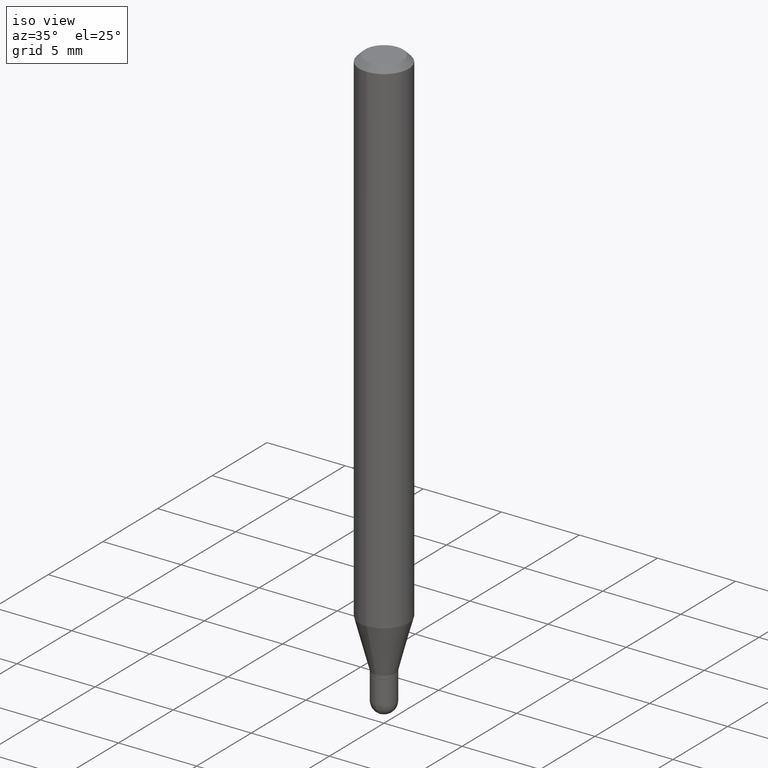
[diagram: clean part render]
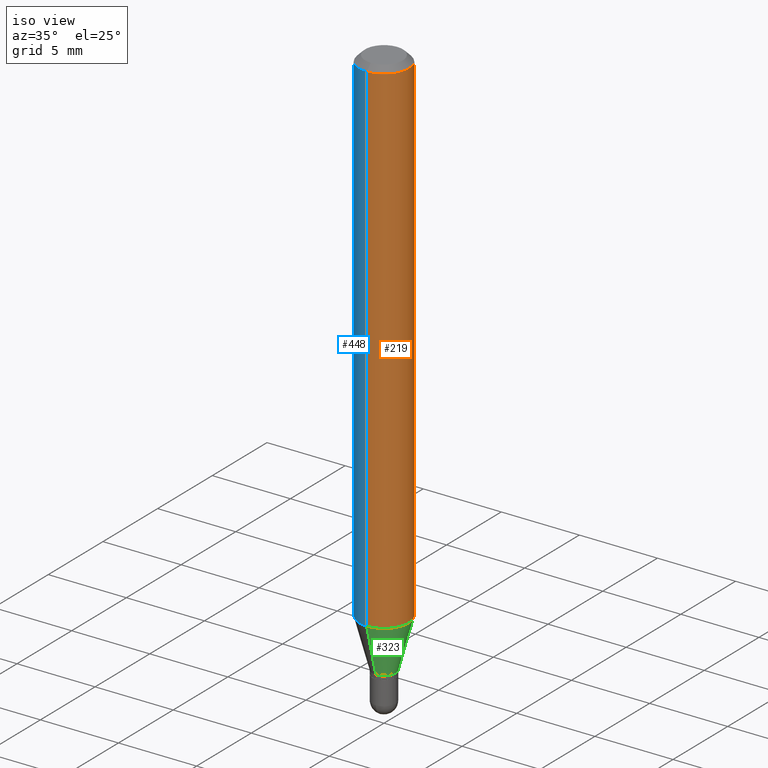
[diagram: same view with three faces highlighted in distinct colors, each labeled with its STEP entity id]
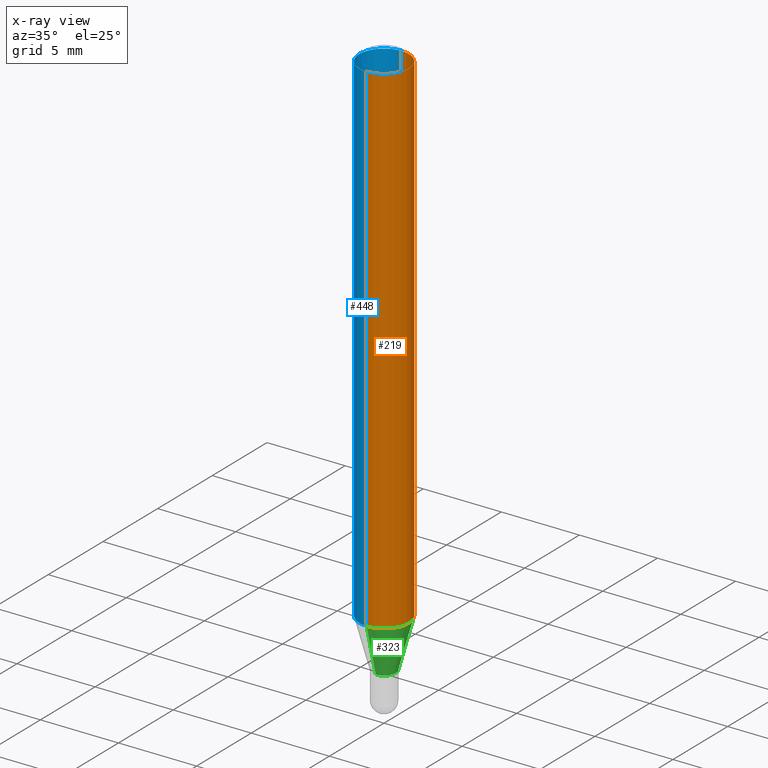
[diagram: x-ray of the same camera — body ghosted, the three highlighted faces saturated]
A machine part, iso view with three faces highlighted in distinct colors.
The next image is the same camera in x-ray (body ghosted, the three faces saturated) — at least one of them is partly hidden behind the body in this view.
Their STEP definitions:

[orange] entity #219 — the highlighted cylindrical surface (edge-blend (fillet) strip) has radius 1.5875 mm, axis along (-0, 0, 1).
#13 = CARTESIAN_POINT ( 'NONE',  ( -4.364351673553605587E-16, -0.06250000000000449640, -1.277842323350228515 ) ) ;
#19 = CARTESIAN_POINT ( 'NONE',  ( 4.440892098500935790E-16, 0.06249999999999551054, -1.277842323350228959 ) ) ;
#57 = ORIENTED_EDGE ( 'NONE', *, *, #73, .T. ) ;
#59 = CIRCLE ( 'NONE', #384, 0.06250000000000000000 ) ;
#73 = EDGE_CURVE ( 'NONE', #133, #124, #59, .T. ) ;
#78 = CARTESIAN_POINT ( 'NONE',  ( -4.364351673553912750E-16, -0.06250000000000005551, -0.01499999999999979128 ) ) ;
#85 = DIRECTION ( 'NONE',  ( -2.445467841293650250E-29, 3.491482720622672358E-15, 1.000000000000000000 ) ) ;
#94 = DIRECTION ( 'NONE',  ( -2.445467841293650250E-29, 3.491482720622672358E-15, 1.000000000000000000 ) ) ;
#101 = CARTESIAN_POINT ( 'NONE',  ( 4.440892098500625669E-16, 0.06250000000000000000, -2.182176700389170224E-16 ) ) ;
#112 = VECTOR ( 'NONE', #420, 39.37007874015748143 ) ;
#124 = VERTEX_POINT ( 'NONE', #19 ) ;
#133 = VERTEX_POINT ( 'NONE', #13 ) ;
#137 = DIRECTION ( 'NONE',  ( -2.445467841293650250E-29, 3.491482720622672358E-15, 1.000000000000000000 ) ) ;
#142 = CARTESIAN_POINT ( 'NONE',  ( 0.000000000000000000, 0.000000000000000000, 0.000000000000000000 ) ) ;
#160 = EDGE_CURVE ( 'NONE', #346, #214, #365, .T. ) ;
#163 = CARTESIAN_POINT ( 'NONE',  ( 3.124922307996946489E-29, -4.461564391657653796E-15, -1.277842323350228737 ) ) ;
#170 = VECTOR ( 'NONE', #501, 39.37007874015748143 ) ;
#183 = CARTESIAN_POINT ( 'NONE',  ( -4.364351673553916201E-16, -0.06250000000000000000, 2.182176700389170224E-16 ) ) ;
#185 = EDGE_CURVE ( 'NONE', #124, #214, #455, .T. ) ;
#211 = ORIENTED_EDGE ( 'NONE', *, *, #160, .F. ) ;
#214 = VERTEX_POINT ( 'NONE', #379 ) ;
#219 = ADVANCED_FACE ( 'NONE', ( #347 ), #341, .T. ) ;
#224 = CARTESIAN_POINT ( 'NONE',  ( 3.668201761940477862E-31, -5.237224080934011471E-17, -0.01500000000000000812 ) ) ;
#256 = DIRECTION ( 'NONE',  ( -6.982962677686265922E-15, -1.000000000000000000, 3.491482720622672358E-15 ) ) ;
#259 = EDGE_LOOP ( 'NONE', ( #57, #421, #211, #338 ) ) ;
#264 = LINE ( 'NONE', #183, #112 ) ;
#276 = EDGE_CURVE ( 'NONE', #133, #346, #264, .T. ) ;
#338 = ORIENTED_EDGE ( 'NONE', *, *, #276, .F. ) ;
#341 = CYLINDRICAL_SURFACE ( 'NONE', #394, 0.06250000000000000000 ) ;
#346 = VERTEX_POINT ( 'NONE', #78 ) ;
#347 = FACE_OUTER_BOUND ( 'NONE', #259, .T. ) ;
#365 = CIRCLE ( 'NONE', #500, 0.06250000000000000000 ) ;
#379 = CARTESIAN_POINT ( 'NONE',  ( 4.440892098500940720E-16, 0.06249999999999995143, -0.01500000000000022669 ) ) ;
#384 = AXIS2_PLACEMENT_3D ( 'NONE', #163, #85, #413 ) ;
#394 = AXIS2_PLACEMENT_3D ( 'NONE', #142, #94, #256 ) ;
#413 = DIRECTION ( 'NONE',  ( -6.982962677686265922E-15, -1.000000000000000000, 4.370956789862821150E-15 ) ) ;
#420 = DIRECTION ( 'NONE',  ( -2.445467841293649970E-29, 3.491482720622672358E-15, 1.000000000000000000 ) ) ;
#421 = ORIENTED_EDGE ( 'NONE', *, *, #185, .T. ) ;
#455 = LINE ( 'NONE', #101, #170 ) ;
#497 = DIRECTION ( 'NONE',  ( -6.982962677686265922E-15, -1.000000000000000000, 3.483106191921935554E-15 ) ) ;
#500 = AXIS2_PLACEMENT_3D ( 'NONE', #224, #137, #497 ) ;
#501 = DIRECTION ( 'NONE',  ( -2.445467841293649970E-29, 3.491482720622672358E-15, 1.000000000000000000 ) ) ;

[blue] entity #448 — the highlighted cylindrical surface (edge-blend (fillet) strip) has radius 1.5875 mm, axis along (-0, 0, 1).
#13 = CARTESIAN_POINT ( 'NONE',  ( -4.364351673553605587E-16, -0.06250000000000449640, -1.277842323350228515 ) ) ;
#19 = CARTESIAN_POINT ( 'NONE',  ( 4.440892098500935790E-16, 0.06249999999999551054, -1.277842323350228959 ) ) ;
#33 = CARTESIAN_POINT ( 'NONE',  ( 3.668201761940477862E-31, -5.237224080934011471E-17, -0.01500000000000000812 ) ) ;
#58 = DIRECTION ( 'NONE',  ( -6.982962677686265922E-15, -1.000000000000000000, 3.483106191921935554E-15 ) ) ;
#60 = AXIS2_PLACEMENT_3D ( 'NONE', #197, #192, #360 ) ;
#78 = CARTESIAN_POINT ( 'NONE',  ( -4.364351673553912750E-16, -0.06250000000000005551, -0.01499999999999979128 ) ) ;
#96 = DIRECTION ( 'NONE',  ( -2.445467841293650250E-29, 3.491482720622672358E-15, 1.000000000000000000 ) ) ;
#101 = CARTESIAN_POINT ( 'NONE',  ( 4.440892098500625669E-16, 0.06250000000000000000, -2.182176700389170224E-16 ) ) ;
#112 = VECTOR ( 'NONE', #420, 39.37007874015748143 ) ;
#113 = CARTESIAN_POINT ( 'NONE',  ( 0.000000000000000000, 0.000000000000000000, 0.000000000000000000 ) ) ;
#115 = DIRECTION ( 'NONE',  ( -6.982962677686265922E-15, -1.000000000000000000, 3.491482720622672358E-15 ) ) ;
#124 = VERTEX_POINT ( 'NONE', #19 ) ;
#133 = VERTEX_POINT ( 'NONE', #13 ) ;
#145 = ORIENTED_EDGE ( 'NONE', *, *, #428, .T. ) ;
#161 = CIRCLE ( 'NONE', #260, 0.06250000000000000000 ) ;
#168 = EDGE_LOOP ( 'NONE', ( #184, #145, #464, #340 ) ) ;
#170 = VECTOR ( 'NONE', #501, 39.37007874015748143 ) ;
#183 = CARTESIAN_POINT ( 'NONE',  ( -4.364351673553916201E-16, -0.06250000000000000000, 2.182176700389170224E-16 ) ) ;
#184 = ORIENTED_EDGE ( 'NONE', *, *, #185, .F. ) ;
#185 = EDGE_CURVE ( 'NONE', #124, #214, #455, .T. ) ;
#192 = DIRECTION ( 'NONE',  ( -2.445467841293650250E-29, 3.491482720622672358E-15, 1.000000000000000000 ) ) ;
#197 = CARTESIAN_POINT ( 'NONE',  ( 3.124922307996946489E-29, -4.461564391657653796E-15, -1.277842323350228737 ) ) ;
#214 = VERTEX_POINT ( 'NONE', #379 ) ;
#260 = AXIS2_PLACEMENT_3D ( 'NONE', #33, #96, #58 ) ;
#264 = LINE ( 'NONE', #183, #112 ) ;
#266 = EDGE_CURVE ( 'NONE', #214, #346, #161, .T. ) ;
#276 = EDGE_CURVE ( 'NONE', #133, #346, #264, .T. ) ;
#279 = DIRECTION ( 'NONE',  ( -2.445467841293650250E-29, 3.491482720622672358E-15, 1.000000000000000000 ) ) ;
#340 = ORIENTED_EDGE ( 'NONE', *, *, #266, .F. ) ;
#346 = VERTEX_POINT ( 'NONE', #78 ) ;
#360 = DIRECTION ( 'NONE',  ( -6.982962677686265922E-15, -1.000000000000000000, 4.370956789862821150E-15 ) ) ;
#379 = CARTESIAN_POINT ( 'NONE',  ( 4.440892098500940720E-16, 0.06249999999999995143, -0.01500000000000022669 ) ) ;
#420 = DIRECTION ( 'NONE',  ( -2.445467841293649970E-29, 3.491482720622672358E-15, 1.000000000000000000 ) ) ;
#428 = EDGE_CURVE ( 'NONE', #124, #133, #458, .T. ) ;
#448 = ADVANCED_FACE ( 'NONE', ( #477 ), #474, .T. ) ;
#455 = LINE ( 'NONE', #101, #170 ) ;
#458 = CIRCLE ( 'NONE', #60, 0.06250000000000000000 ) ;
#464 = ORIENTED_EDGE ( 'NONE', *, *, #276, .T. ) ;
#474 = CYLINDRICAL_SURFACE ( 'NONE', #481, 0.06250000000000000000 ) ;
#477 = FACE_OUTER_BOUND ( 'NONE', #168, .T. ) ;
#481 = AXIS2_PLACEMENT_3D ( 'NONE', #113, #279, #115 ) ;
#501 = DIRECTION ( 'NONE',  ( -2.445467841293649970E-29, 3.491482720622672358E-15, 1.000000000000000000 ) ) ;

[green] entity #323 — the highlighted conical surface has half-angle 15 deg.
#13 = CARTESIAN_POINT ( 'NONE',  ( -4.364351673553605587E-16, -0.06250000000000449640, -1.277842323350228515 ) ) ;
#19 = CARTESIAN_POINT ( 'NONE',  ( 4.440892098500935790E-16, 0.06249999999999551054, -1.277842323350228959 ) ) ;
#24 = EDGE_CURVE ( 'NONE', #342, #133, #290, .T. ) ;
#34 = ORIENTED_EDGE ( 'NONE', *, *, #24, .F. ) ;
#36 = ORIENTED_EDGE ( 'NONE', *, *, #73, .F. ) ;
#47 = CARTESIAN_POINT ( 'NONE',  ( -2.059973989917119804E-16, -0.02950000000000509159, -1.401000000000000245 ) ) ;
#54 = ORIENTED_EDGE ( 'NONE', *, *, #460, .T. ) ;
#59 = CIRCLE ( 'NONE', #384, 0.06250000000000000000 ) ;
#63 = LINE ( 'NONE', #303, #386 ) ;
#73 = EDGE_CURVE ( 'NONE', #133, #124, #59, .T. ) ;
#85 = DIRECTION ( 'NONE',  ( -2.445467841293650250E-29, 3.491482720622672358E-15, 1.000000000000000000 ) ) ;
#91 = DIRECTION ( 'NONE',  ( -1.807323732225336056E-15, -0.2588190451025190186, 0.9659258262890687563 ) ) ;
#97 = ORIENTED_EDGE ( 'NONE', *, *, #281, .T. ) ;
#99 = VERTEX_POINT ( 'NONE', #362 ) ;
#105 = AXIS2_PLACEMENT_3D ( 'NONE', #431, #106, #154 ) ;
#106 = DIRECTION ( 'NONE',  ( -2.445467841293650250E-29, 3.491482720622672358E-15, 1.000000000000000000 ) ) ;
#124 = VERTEX_POINT ( 'NONE', #19 ) ;
#133 = VERTEX_POINT ( 'NONE', #13 ) ;
#134 = DIRECTION ( 'NONE',  ( 1.839019923739606232E-15, 0.2588190451025257910, 0.9659258262890669799 ) ) ;
#154 = DIRECTION ( 'NONE',  ( -6.982962677686265922E-15, -1.000000000000000000, 0.000000000000000000 ) ) ;
#163 = CARTESIAN_POINT ( 'NONE',  ( 3.124922307996946489E-29, -4.461564391657653796E-15, -1.277842323350228737 ) ) ;
#238 = DIRECTION ( 'NONE',  ( -2.445467841293650250E-29, 3.491482720622672358E-15, 1.000000000000000000 ) ) ;
#268 = VECTOR ( 'NONE', #91, 39.37007874015748143 ) ;
#269 = CONICAL_SURFACE ( 'NONE', #105, 0.02950000000000019967, 0.2617993877991511287 ) ;
#281 = EDGE_CURVE ( 'NONE', #99, #124, #63, .T. ) ;
#290 = LINE ( 'NONE', #47, #268 ) ;
#303 = CARTESIAN_POINT ( 'NONE',  ( 2.096101070492652151E-16, 0.02949999999999530775, -1.401000000000000245 ) ) ;
#323 = ADVANCED_FACE ( 'NONE', ( #389 ), #269, .T. ) ;
#342 = VERTEX_POINT ( 'NONE', #355 ) ;
#344 = CIRCLE ( 'NONE', #406, 0.02950000000000019967 ) ;
#355 = CARTESIAN_POINT ( 'NONE',  ( -2.059973989917119804E-16, -0.02950000000000509159, -1.401000000000000245 ) ) ;
#362 = CARTESIAN_POINT ( 'NONE',  ( 3.268496584496795573E-16, 0.02949999999999530775, -1.401000000000000245 ) ) ;
#380 = EDGE_LOOP ( 'NONE', ( #54, #97, #36, #34 ) ) ;
#384 = AXIS2_PLACEMENT_3D ( 'NONE', #163, #85, #413 ) ;
#386 = VECTOR ( 'NONE', #134, 39.37007874015748143 ) ;
#389 = FACE_OUTER_BOUND ( 'NONE', #380, .T. ) ;
#406 = AXIS2_PLACEMENT_3D ( 'NONE', #437, #238, #407 ) ;
#407 = DIRECTION ( 'NONE',  ( -6.982962677686265922E-15, -1.000000000000000000, 0.000000000000000000 ) ) ;
#413 = DIRECTION ( 'NONE',  ( -6.982962677686265922E-15, -1.000000000000000000, 4.370956789862821150E-15 ) ) ;
#431 = CARTESIAN_POINT ( 'NONE',  ( 3.426100445652404486E-29, -4.891567291592364272E-15, -1.401000000000000245 ) ) ;
#437 = CARTESIAN_POINT ( 'NONE',  ( 3.426100445652404486E-29, -4.891567291592364272E-15, -1.401000000000000245 ) ) ;
#460 = EDGE_CURVE ( 'NONE', #342, #99, #344, .T. ) ;